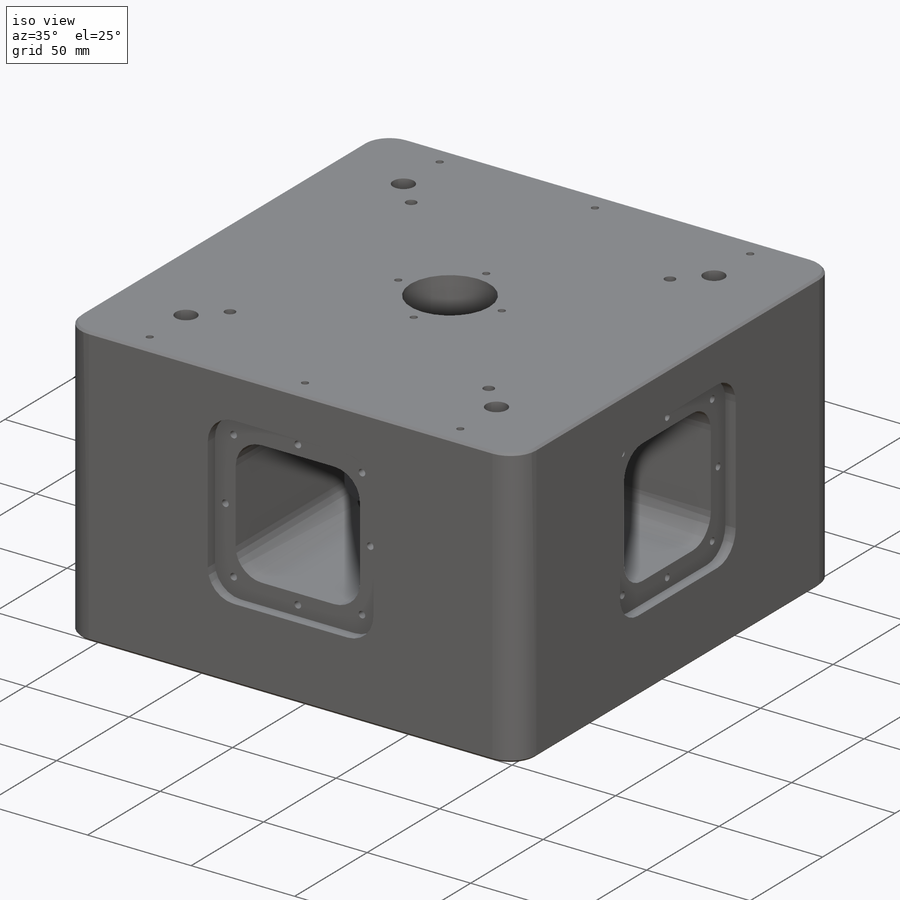
[diagram: iso view]
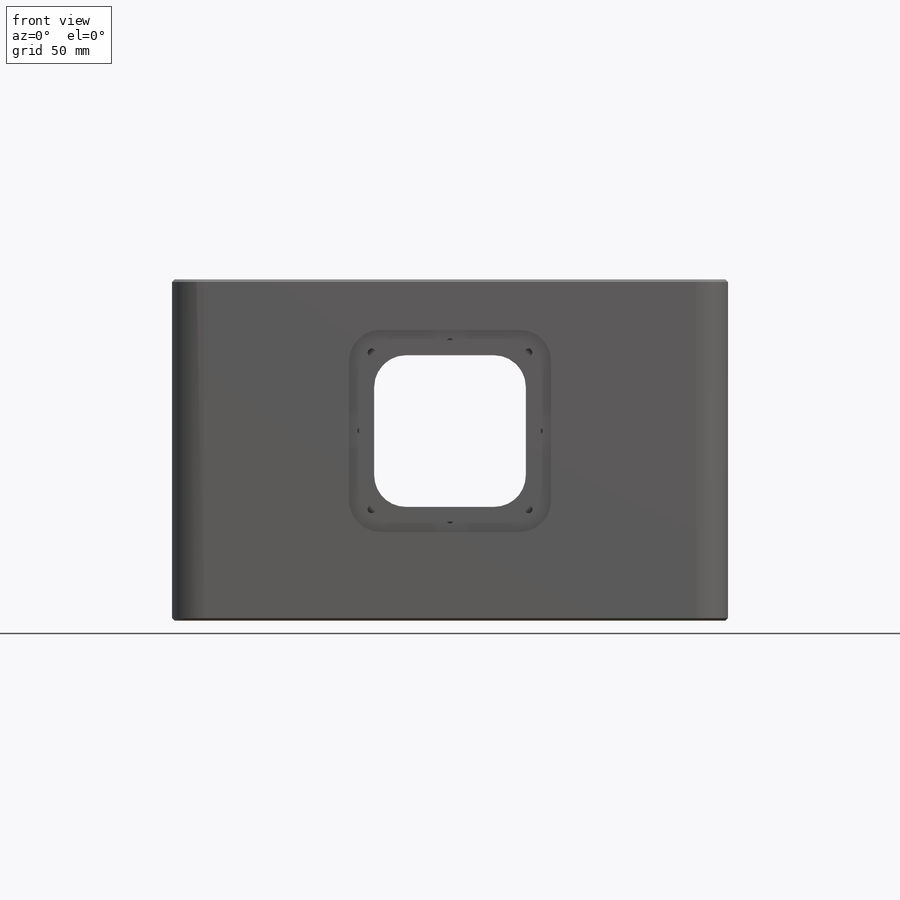
[diagram: front view]
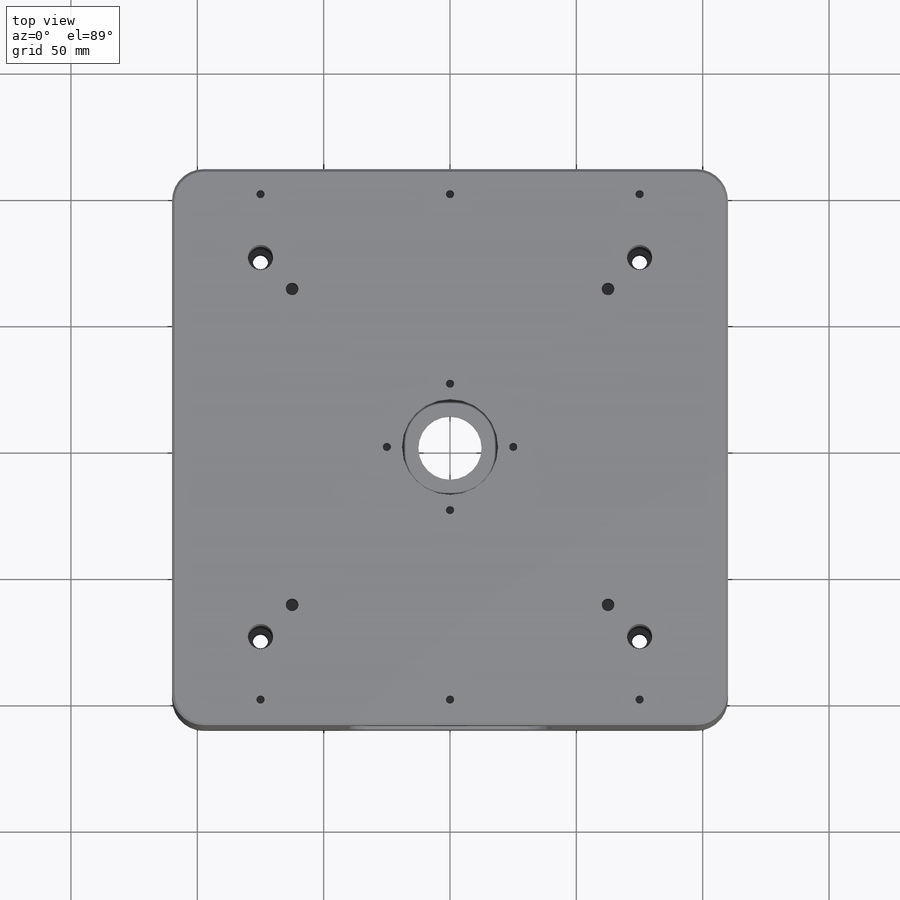
[diagram: top view]
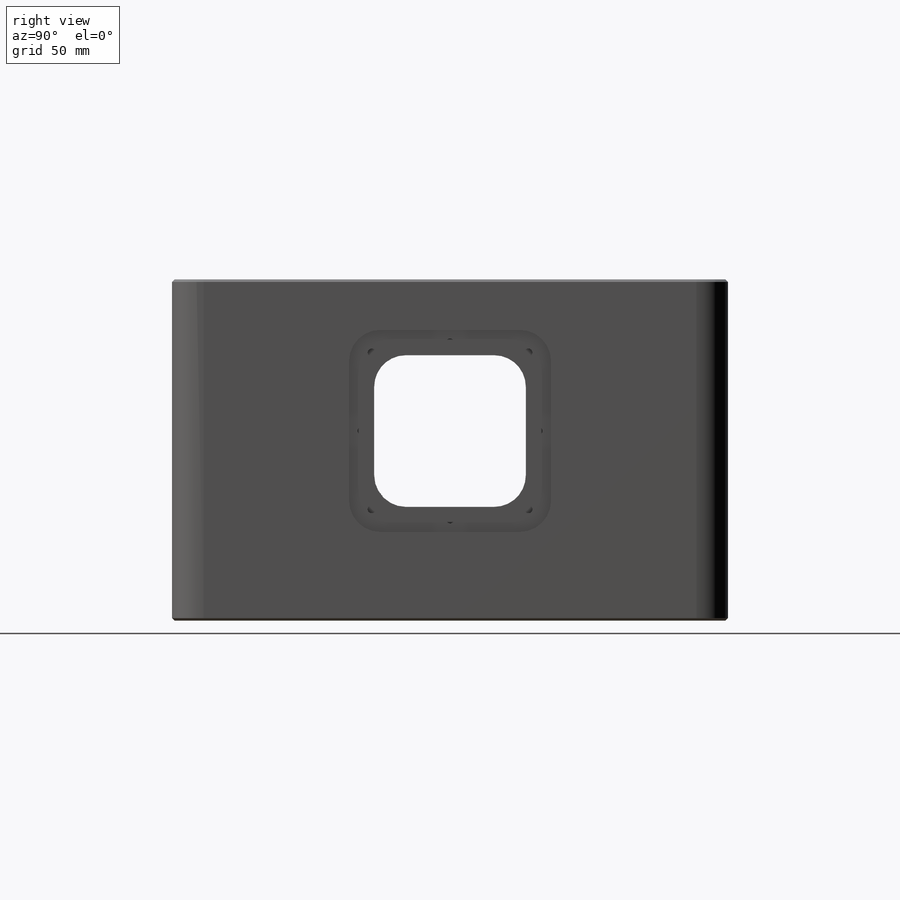
[diagram: right view]
SOLIDWORKS PART (.sldprt)
format: sldprt  version: not decoded by parser v0  size: 1,234,944 bytes
history: native  units: mm
features: thread x52, sketch x23, cut_extrude x22, material x1, extrude x1, chamfer x1 (+13 scaffold rows collapsed)
feature tree (113):
  scaffold x13  (default folders/planes/origin — collapsed)
  material  "6063-T6"
  sketch  "Sketch2"  dims[D3=12.5mm D1=220.0mm D2=220.0mm]
  extrude  "Ex_block"  Depth=135mm
  sketch  "ObjHole"  dims[D1=12.5mm D2=12.5mm]
  cut_extrude  "Cut-ObjHole"  Depth=25mm
  sketch  "Sk_ObjThread"  dims[D1=11.0mm]
  cut_extrude  "Ex_ObjThread"  [1 undecoded]
  thread  "Cosmetic Thread17"  Diameter=25.001mm  [1 undecoded]
  sketch  "Sketch5"  dims[c1.D1=~22.36068mm c1.D3=12.5mm c1.D5=12.5mm c2.D1=50.0mm c2.D2=60.0mm c2.D3=60.0mm c2.D4=60.0mm c2.D5=20.0mm c2.D6=20.0mm c3.D5=45.0mm c3.D7=60.0mm c3.D1=60.0mm c3.D3=80.0mm c4.D1=60.0mm c4.D2=60.0mm]
  cut_extrude  "Cut Optical path front-back"  [1 undecoded]
  sketch  "Sketch6"  dims[c1.D1=12.5mm c1.D3=12.5mm c2.D1=80.0mm c2.D2=80.0mm c2.D3=50.0mm c2.D4=50.0mm c2.D5=50.0mm c3.D3=50.0mm c3.D4=60.0mm c3.D5=60.0mm c3.D6=~17.67767mm c3.D1=60.0mm c3.D2=60.0mm]
  cut_extrude  "Cut Optical path left-right"  [1 undecoded]
  sketch  "Sketch25"  dims[D1=~4.123106mm]
  cut_extrude  "Cut Optics mount holes vert"  [1 undecoded]
  sketch  "Sk long bolt holes"  dims[D1=125.0mm]
  cut_extrude  "Cut M6 bolt holes V"  [1 undecoded]
  sketch  "Sk bolt sink"  dims[D1=5.5mm]
  cut_extrude  "Cut M6 bolt holes V 2"  Depth=100mm
  sketch  "Sketch27"  dims[D1=5.0mm]
  cut_extrude  "Cut bolt holes H"  [1 undecoded]
  sketch  "Sketch28"  dims[D1=~7.071068mm]
  cut_extrude  "Cut bolt holes H 2"  [1 undecoded]
  sketch  "Sk PZT M6 taps"  dims[D1=3.0mm]
  cut_extrude  "Cut PZT M6 taps"  [1 undecoded]
  thread  "Cosmetic Thread9"  Diameter=6mm  [1 undecoded]
  thread  "Cosmetic Thread10"  Diameter=6mm  [1 undecoded]
  thread  "Cosmetic Thread11"  Diameter=6mm  [1 undecoded]
  thread  "Cosmetic Thread12"  Diameter=6mm  [1 undecoded]
  chamfer  "ChamferEdges"  Distance=1mm Angle=45deg
  sketch  "Fix lid taps"  dims[D1=2.0mm]
  cut_extrude  "Cut Fix lid taps"  [1 undecoded]
  thread  "Cosmetic Thread3"  Diameter=4mm  [1 undecoded]
  thread  "Cosmetic Thread4"  Diameter=4mm  [1 undecoded]
  thread  "Cosmetic Thread5"  Diameter=4mm  [1 undecoded]
  thread  "Cosmetic Thread6"  Diameter=4mm  [1 undecoded]
  thread  "Cosmetic Thread7"  Diameter=4mm  [1 undecoded]
  thread  "Cosmetic Thread8"  Diameter=4mm  [1 undecoded]
  thread  "Cosmetic Thread35"  Diameter=9.6mm  [1 undecoded]
  sketch  "Sketch12"  dims[c1.D1=38.0mm c1.D5=12.5mm c2.D1=100.0mm c2.D2=80.0mm c2.D3=80.0mm c2.D4=80.0mm c3.D1=80.0mm c3.D2=80.0mm]
  cut_extrude  "Cut Plate Front"  Depth=5mm
  sketch  "Sketch13"  dims[c1.D1=40.0mm c1.D3=12.5mm c1.D6=12.5mm c2.D1=80.0mm c2.D2=80.0mm c2.D3=~16.780014mm c2.D4=100.0mm c2.D5=100.0mm c2.D6=~16.068542mm c3.D1=~103.274485mm c3.D2=109.5mm c3.D3=109.5mm c3.D4=100.0mm c4.D1=~101.282247mm c4.D2=~99.950337mm c4.D3=~99.950337mm c5.D2=~99.950337mm c5.D3=~99.950337mm c5.D5=100.0mm c5.D1=~122.328988mm c6.D2=100.0mm c6.D3=87.5mm c6.D1=80.0mm c7.D2=80.0mm]
  cut_extrude  "Cut Plate Right"  Depth=5mm
  sketch  "Sketch14"  dims[c1.D1=65.0mm c1.D5=12.5mm c2.D1=80.0mm c2.D2=83.0mm c3.D2=90.0deg c4.D2=80.0mm c4.D3=80.0mm c4.D4=74.0mm c5.D4=90.0deg c6.D4=80.0mm]
  cut_extrude  "Cut Plate Back"  Depth=5mm
  sketch  "Sketch15"  dims[c1.D1=38.0mm c1.D5=12.5mm c2.D1=80.0mm c2.D2=80.0mm c2.D3=80.0mm c2.D4=80.0mm]
  cut_extrude  "Cut Plate Left"  Depth=5mm
  sketch  "Sketch17"  dims[c1.D1=38.0mm c1.D3=12.5mm c2.D1=80.0mm c2.D2=80.0mm]
  cut_extrude  "Cut Plate Bottom"  Depth=5mm
  sketch  "Sketch16"  dims[D1=~2.008756mm]
  cut_extrude  "Cut Plate Front M4"  [1 undecoded]
  thread  "Cosmetic Thread13"  Diameter=4mm  [1 undecoded]
  thread  "Cosmetic Thread14"  Diameter=4mm  [1 undecoded]
  thread  "Cosmetic Thread15"  Diameter=4mm  [1 undecoded]
  thread  "Cosmetic Thread16"  Diameter=4mm  [1 undecoded]
  thread  "Cosmetic Thread52"  Diameter=4mm  [1 undecoded]
  thread  "Cosmetic Thread53"  Diameter=4mm  [1 undecoded]
  thread  "Cosmetic Thread54"  Diameter=4mm  [1 undecoded]
  thread  "Cosmetic Thread55"  Diameter=4mm  [1 undecoded]
  sketch  "Sketch26"  dims[D1=~3.031272mm]
  cut_extrude  "Cut Plate Right M4"  [1 undecoded]
  thread  "Cosmetic Thread30"  Diameter=4mm  [1 undecoded]
  thread  "Cosmetic Thread32"  Diameter=4mm  [1 undecoded]
  thread  "Cosmetic Thread33"  Diameter=4mm  [1 undecoded]
  thread  "Cosmetic Thread34"  Diameter=4mm  [1 undecoded]
  thread  "Cosmetic Thread48"  Diameter=4mm  [1 undecoded]
  thread  "Cosmetic Thread49"  Diameter=4mm  [1 undecoded]
  thread  "Cosmetic Thread50"  Diameter=4mm  [1 undecoded]
  thread  "Cosmetic Thread51"  Diameter=4mm  [1 undecoded]
  sketch  "Sketch19"  dims[D1=~3.31381mm]
  cut_extrude  "Cut Plate Bottom M4"  [1 undecoded]
  thread  "Cosmetic Thread18"  Diameter=4mm  [1 undecoded]
  thread  "Cosmetic Thread19"  Diameter=4mm  [1 undecoded]
  thread  "Cosmetic Thread20"  Diameter=4mm  [1 undecoded]
  thread  "Cosmetic Thread21"  Diameter=4mm  [1 undecoded]
  thread  "Cosmetic Thread44"  Diameter=4mm  [1 undecoded]
  thread  "Cosmetic Thread45"  Diameter=4mm  [1 undecoded]
  thread  "Cosmetic Thread46"  Diameter=4mm  [1 undecoded]
  thread  "Cosmetic Thread47"  Diameter=4mm  [1 undecoded]
  sketch  "Sketch21"  dims[D1=~2.337963mm]
  cut_extrude  "Cut Plate Back M4"  [1 undecoded]
  thread  "Cosmetic Thread22"  Diameter=4mm  [1 undecoded]
  thread  "Cosmetic Thread23"  Diameter=4mm  [1 undecoded]
  thread  "Cosmetic Thread24"  Diameter=4mm  [1 undecoded]
  thread  "Cosmetic Thread25"  Diameter=4mm  [1 undecoded]
  thread  "Cosmetic Thread40"  Diameter=4mm  [1 undecoded]
  thread  "Cosmetic Thread41"  Diameter=4mm  [1 undecoded]
  thread  "Cosmetic Thread42"  Diameter=4mm  [1 undecoded]
  thread  "Cosmetic Thread43"  Diameter=4mm  [1 undecoded]
  sketch  "Sketch22"  dims[D1=~3.425889mm]
  cut_extrude  "Cut Plate Left M4"  [1 undecoded]
  thread  "Cosmetic Thread26"  Diameter=4mm  [1 undecoded]
  thread  "Cosmetic Thread27"  Diameter=4mm  [1 undecoded]
  thread  "Cosmetic Thread28"  Diameter=4mm  [1 undecoded]
  thread  "Cosmetic Thread29"  Diameter=4mm  [1 undecoded]
  thread  "Cosmetic Thread36"  Diameter=4mm  [1 undecoded]
  thread  "Cosmetic Thread37"  Diameter=4mm  [1 undecoded]
  thread  "Cosmetic Thread38"  Diameter=4mm  [1 undecoded]
  thread  "Cosmetic Thread39"  Diameter=4mm  [1 undecoded]
  sketch  "Sketch23"  dims[D1=12.5mm]
  cut_extrude  "Cut Optical path Vert"  [1 undecoded]
decode coverage: 84 of 99 modeling features carry decoded parameters
note: ~ marks probable driven/reference dimensions
note: 67 parameter values undecoded
summary: no parameter record found for 15 features
note: suppression state not decoded; provenance and decode notes live in map.json
